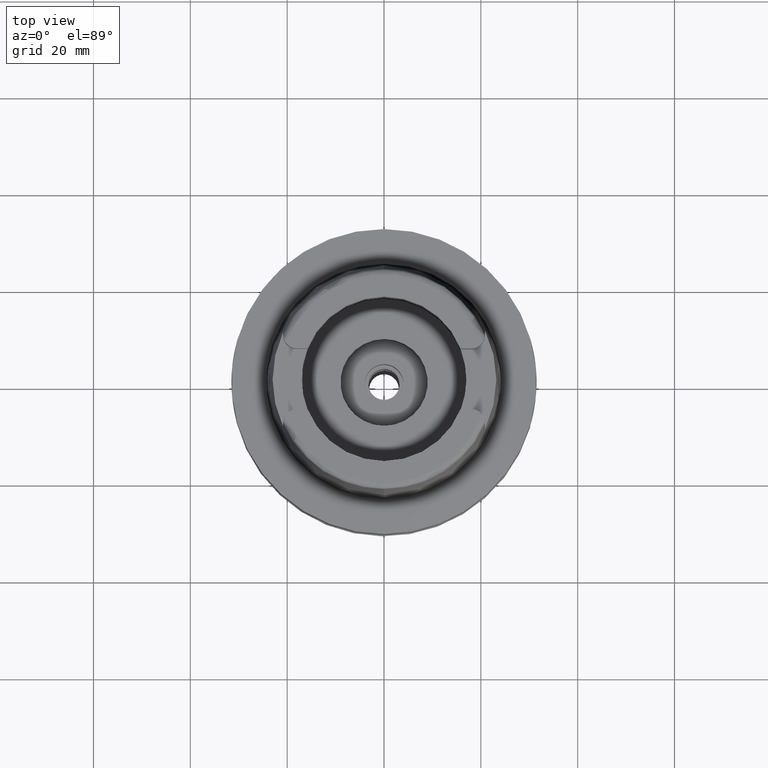
[diagram: clean part render]
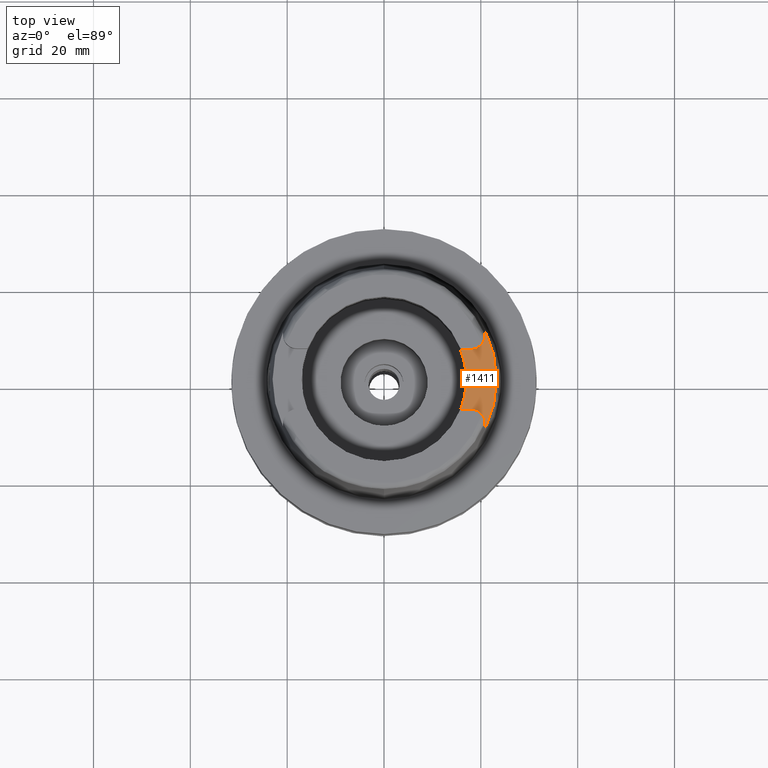
[diagram: same view with one face highlighted and labeled with its STEP entity id]
A machine part, top view. The second image highlights one B-rep face of the part: STEP entity #1411.
In plain terms, the highlighted planar face has unit normal (0, 0, 1).
Its self-contained STEP definition (entity closure, byte-faithful):
#187 = AXIS2_PLACEMENT_3D ( 'NONE', #3433, #3381, #1666 ) ;
#234 = CARTESIAN_POINT ( 'NONE',  ( 20.87001804948999961, 10.16747560217999968, 22.00000000000000000 ) ) ;
#406 = CARTESIAN_POINT ( 'NONE',  ( 20.86999606055999834, -10.16757672219999975, 22.00000000000000000 ) ) ;
#496 = VECTOR ( 'NONE', #5051, 1000.000000000000114 ) ;
#562 = VERTEX_POINT ( 'NONE', #5497 ) ;
#653 = CARTESIAN_POINT ( 'NONE',  ( 15.80149043602999903, 6.270000000000000462, 22.00000000000000000 ) ) ;
#723 = CIRCLE ( 'NONE', #187, 23.21499834174999322 ) ;
#845 = AXIS2_PLACEMENT_3D ( 'NONE', #1949, #3566, #3615 ) ;
#936 = ORIENTED_EDGE ( 'NONE', *, *, #3115, .F. ) ;
#940 = CARTESIAN_POINT ( 'NONE',  ( 20.87000000000000099, 9.150000000000000355, 22.00000000000000000 ) ) ;
#965 = LINE ( 'NONE', #653, #2260 ) ;
#1052 = ORIENTED_EDGE ( 'NONE', *, *, #1661, .F. ) ;
#1082 = ORIENTED_EDGE ( 'NONE', *, *, #4301, .F. ) ;
#1095 = EDGE_CURVE ( 'NONE', #4710, #1182, #3268, .T. ) ;
#1176 = CIRCLE ( 'NONE', #2347, 2.880000000000000782 ) ;
#1182 = VERTEX_POINT ( 'NONE', #4516 ) ;
#1220 = CARTESIAN_POINT ( 'NONE',  ( 20.87000000000000099, -9.150000000000000355, 22.00000000000000000 ) ) ;
#1411 = ADVANCED_FACE ( 'NONE', ( #5509 ), #5030, .T. ) ;
#1636 = VECTOR ( 'NONE', #4532, 1000.000000000000000 ) ;
#1661 = EDGE_CURVE ( 'NONE', #562, #3732, #3773, .T. ) ;
#1666 = DIRECTION ( 'NONE',  ( 0.8989877876694422065, 0.4379736951247206744, 0.0000000000000000000 ) ) ;
#1940 = VERTEX_POINT ( 'NONE', #5164 ) ;
#1949 = CARTESIAN_POINT ( 'NONE',  ( 0.0000000000000000000, 0.0000000000000000000, 22.00000000000000000 ) ) ;
#2160 = ORIENTED_EDGE ( 'NONE', *, *, #2938, .F. ) ;
#2260 = VECTOR ( 'NONE', #4007, 1000.000000000000000 ) ;
#2285 = AXIS2_PLACEMENT_3D ( 'NONE', #2457, #4629, #5427 ) ;
#2347 = AXIS2_PLACEMENT_3D ( 'NONE', #4914, #4968, #2823 ) ;
#2457 = CARTESIAN_POINT ( 'NONE',  ( 0.0000000000000000000, 0.0000000000000000000, 22.00000000000000000 ) ) ;
#2577 = CARTESIAN_POINT ( 'NONE',  ( 17.98999999999999844, -6.270000000000000462, 22.00000000000000000 ) ) ;
#2633 = ORIENTED_EDGE ( 'NONE', *, *, #1095, .F. ) ;
#2823 = DIRECTION ( 'NONE',  ( 0.0000000000000000000, -1.000000000000000000, 0.0000000000000000000 ) ) ;
#2852 = LINE ( 'NONE', #3351, #1636 ) ;
#2883 = DIRECTION ( 'NONE',  ( 0.0000000000000000000, 0.0000000000000000000, 1.000000000000000000 ) ) ;
#2899 = CARTESIAN_POINT ( 'NONE',  ( 15.80149043602999903, -6.270000000000000462, 22.00000000000000000 ) ) ;
#2938 = EDGE_CURVE ( 'NONE', #5330, #1940, #1176, .T. ) ;
#3115 = EDGE_CURVE ( 'NONE', #4373, #562, #723, .T. ) ;
#3241 = CARTESIAN_POINT ( 'NONE',  ( 17.98999999999999844, -9.150000000000000355, 22.00000000000000000 ) ) ;
#3268 = CIRCLE ( 'NONE', #845, 17.00000000000000000 ) ;
#3351 = CARTESIAN_POINT ( 'NONE',  ( 17.98999999999999844, -6.270000000000000462, 22.00000000000000000 ) ) ;
#3381 = DIRECTION ( 'NONE',  ( 0.0000000000000000000, 0.0000000000000000000, -1.000000000000000000 ) ) ;
#3433 = CARTESIAN_POINT ( 'NONE',  ( 0.0000000000000000000, 0.0000000000000000000, 22.00000000000000000 ) ) ;
#3435 = ORIENTED_EDGE ( 'NONE', *, *, #4089, .F. ) ;
#3530 = CARTESIAN_POINT ( 'NONE',  ( 20.87000000000000099, 9.489158534059999539, 22.00000000000000000 ) ) ;
#3566 = DIRECTION ( 'NONE',  ( 0.0000000000000000000, 0.0000000000000000000, 1.000000000000000000 ) ) ;
#3615 = DIRECTION ( 'NONE',  ( 0.9294994374136111848, -0.3688235294118045182, 0.0000000000000000000 ) ) ;
#3700 = AXIS2_PLACEMENT_3D ( 'NONE', #3241, #2883, #4973 ) ;
#3732 = VERTEX_POINT ( 'NONE', #1220 ) ;
#3773 = LINE ( 'NONE', #406, #496 ) ;
#3827 = EDGE_CURVE ( 'NONE', #1940, #4373, #4993, .T. ) ;
#3930 = VERTEX_POINT ( 'NONE', #2577 ) ;
#4007 = DIRECTION ( 'NONE',  ( 1.000000000000000000, -8.806665515566000284E-14, 0.0000000000000000000 ) ) ;
#4089 = EDGE_CURVE ( 'NONE', #1182, #5330, #965, .T. ) ;
#4163 = EDGE_CURVE ( 'NONE', #3732, #3930, #4878, .T. ) ;
#4288 = CARTESIAN_POINT ( 'NONE',  ( 20.87001804948999961, 10.16747560217999968, 22.00000000000000000 ) ) ;
#4301 = EDGE_CURVE ( 'NONE', #3930, #4710, #2852, .T. ) ;
#4369 = CARTESIAN_POINT ( 'NONE',  ( 20.87000000000000099, 9.828317068119998723, 22.00000000000000000 ) ) ;
#4373 = VERTEX_POINT ( 'NONE', #234 ) ;
#4516 = CARTESIAN_POINT ( 'NONE',  ( 15.80149043602999903, 6.270000000000000462, 22.00000000000000000 ) ) ;
#4532 = DIRECTION ( 'NONE',  ( -1.000000000000000000, -8.522579531193000322E-14, 0.0000000000000000000 ) ) ;
#4629 = DIRECTION ( 'NONE',  ( 0.0000000000000000000, 0.0000000000000000000, 1.000000000000000000 ) ) ;
#4710 = VERTEX_POINT ( 'NONE', #2899 ) ;
#4878 = CIRCLE ( 'NONE', #3700, 2.880000000000000782 ) ;
#4914 = CARTESIAN_POINT ( 'NONE',  ( 17.98999999999999844, 9.150000000000000355, 22.00000000000000000 ) ) ;
#4968 = DIRECTION ( 'NONE',  ( 0.0000000000000000000, 0.0000000000000000000, 1.000000000000000000 ) ) ;
#4973 = DIRECTION ( 'NONE',  ( 1.000000000000000000, 0.0000000000000000000, 0.0000000000000000000 ) ) ;
#4993 = B_SPLINE_CURVE_WITH_KNOTS ( 'NONE', 3,
 ( #940, #3530, #4369, #4288 ),
 .UNSPECIFIED., .F., .F.,
 ( 4, 4 ),
 ( 0.0000000000000000000, 1.000000000000000000 ),
 .UNSPECIFIED. ) ;
#5030 = PLANE ( 'NONE',  #2285 ) ;
#5051 = DIRECTION ( 'NONE',  ( 3.871395038337025838E-06, 0.9999999999925061056, 7.680963924187050754E-14 ) ) ;
#5057 = CARTESIAN_POINT ( 'NONE',  ( 17.98999999999999844, 6.270000000000000462, 22.00000000000000000 ) ) ;
#5164 = CARTESIAN_POINT ( 'NONE',  ( 20.87000000000000099, 9.150000000000000355, 22.00000000000000000 ) ) ;
#5197 = EDGE_LOOP ( 'NONE', ( #1082, #5270, #1052, #936, #5463, #2160, #3435, #2633 ) ) ;
#5270 = ORIENTED_EDGE ( 'NONE', *, *, #4163, .F. ) ;
#5330 = VERTEX_POINT ( 'NONE', #5057 ) ;
#5427 = DIRECTION ( 'NONE',  ( 1.000000000000000000, 0.0000000000000000000, 0.0000000000000000000 ) ) ;
#5463 = ORIENTED_EDGE ( 'NONE', *, *, #3827, .F. ) ;
#5497 = CARTESIAN_POINT ( 'NONE',  ( 20.87000000000000099, -10.16755860605000095, 22.00000000000000000 ) ) ;
#5509 = FACE_OUTER_BOUND ( 'NONE', #5197, .T. ) ;